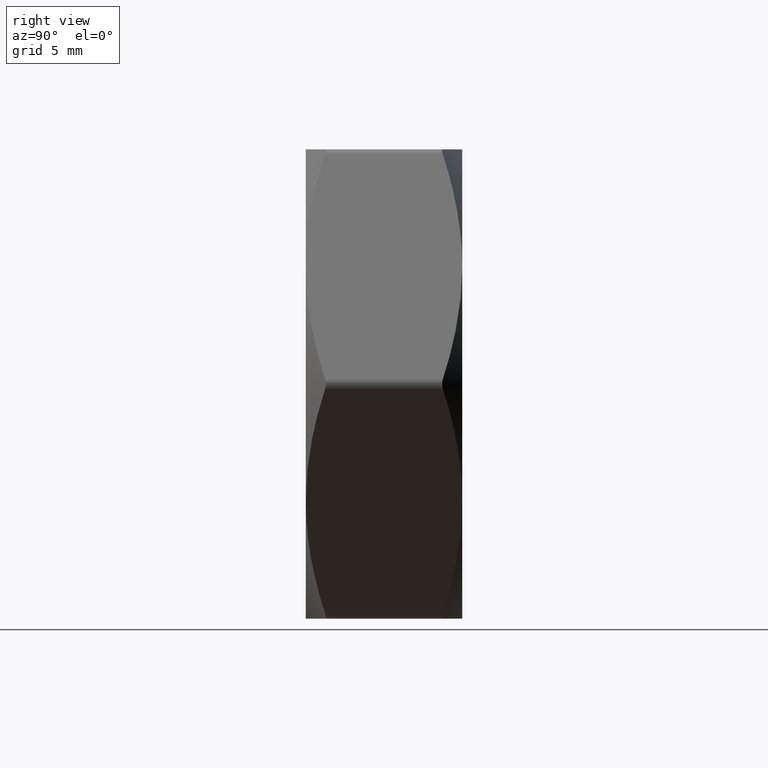
[diagram: clean part render]
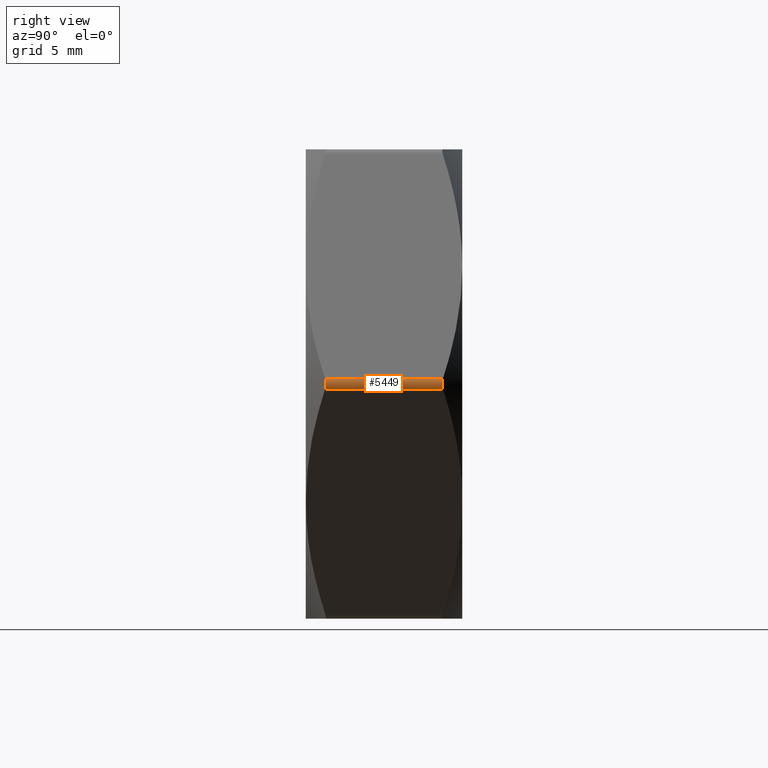
[diagram: same view with one face highlighted and labeled with its STEP entity id]
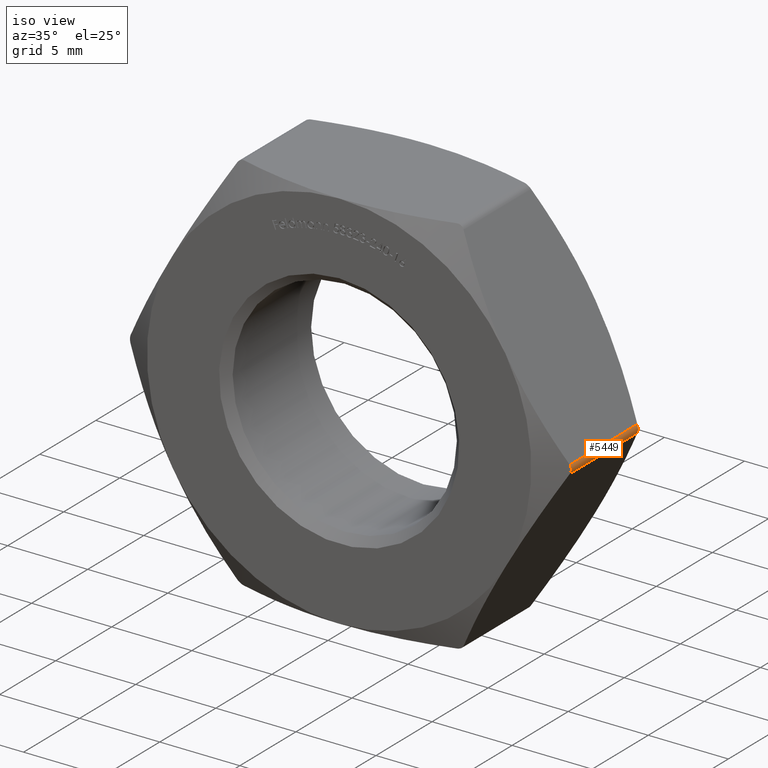
[diagram: same view with one face highlighted and labeled with its STEP entity id]
A machine part, right view. The second image highlights one B-rep face of the part: STEP entity #5449.
A second angle (iso view) of the same face is appended — the face is thin or edge-on in the first view.
In plain terms, the highlighted cylindrical surface (edge-blend (fillet) strip) has radius 0.5 mm, axis along (0, -1, 0).
Its self-contained STEP definition (entity closure, byte-faithful):
#187 = DIRECTION ( 'NONE',  ( 0.0000000000000000000, -1.000000000000000000, 0.0000000000000000000 ) ) ;
#299 = VERTEX_POINT ( 'NONE', #1596 ) ;
#398 = VERTEX_POINT ( 'NONE', #7454 ) ;
#412 = DIRECTION ( 'NONE',  ( 0.0000000000000000000, -1.000000000000000000, 0.0000000000000000000 ) ) ;
#417 = CARTESIAN_POINT ( 'NONE',  ( 13.75500057916277400, -2.986220986998569000, 0.1756401387507428000 ) ) ;
#588 = CARTESIAN_POINT ( 'NONE',  ( 13.77897635095641600, -2.972905852214859000, -0.08857185176792890800 ) ) ;
#608 = VECTOR ( 'NONE', #412, 1000.000000000000000 ) ;
#1022 = EDGE_CURVE ( 'NONE', #2672, #7926, #3034, .T. ) ;
#1596 = CARTESIAN_POINT ( 'NONE',  ( 13.71206889325392300, 3.010220883462213500, 0.2499999999994537700 ) ) ;
#2672 = VERTEX_POINT ( 'NONE', #14881 ) ;
#3034 = LINE ( 'NONE', #11986, #608 ) ;
#3309 = VECTOR ( 'NONE', #16092, 1000.000000000000000 ) ;
#3851 = B_SPLINE_CURVE_WITH_KNOTS ( 'NONE', 3,
 ( #12735, #12564, #12794, #9979, #4839, #5009 ),
 .UNSPECIFIED., .F., .F.,
 ( 4, 2, 4 ),
 ( 6.105441178433198600E-016, 0.0002638430375142733600, 0.0005276860750279361000 ),
 .UNSPECIFIED. ) ;
#4012 = EDGE_CURVE ( 'NONE', #299, #2672, #3851, .T. ) ;
#4693 = CARTESIAN_POINT ( 'NONE',  ( 13.71206889325392500, -3.010220883462213100, -0.2499999999994546000 ) ) ;
#4839 = CARTESIAN_POINT ( 'NONE',  ( 13.75500057916244900, 2.986220986998747900, -0.1756401387516019800 ) ) ;
#5009 = CARTESIAN_POINT ( 'NONE',  ( 13.71206889325360800, 3.010220883462389800, -0.2499999999999993100 ) ) ;
#5449 = ADVANCED_FACE ( 'NONE', ( #16261 ), #7740, .T. ) ;
#6060 = ORIENTED_EDGE ( 'NONE', *, *, #14220, .F. ) ;
#6297 = EDGE_LOOP ( 'NONE', ( #15434, #13377, #6060, #10608 ) ) ;
#6612 = CARTESIAN_POINT ( 'NONE',  ( 13.27905619136139000, 4.000000000000000000, -1.626303258728256700E-016 ) ) ;
#6918 = CARTESIAN_POINT ( 'NONE',  ( 13.71206889325360700, 4.000000000000000000, 0.2500000000000019400 ) ) ;
#7454 = CARTESIAN_POINT ( 'NONE',  ( 13.71206889325360800, -3.010220883462389800, 0.2499999999999991400 ) ) ;
#7637 = B_SPLINE_CURVE_WITH_KNOTS ( 'NONE', 3,
 ( #12041, #9570, #588, #8141, #417, #13509 ),
 .UNSPECIFIED., .F., .F.,
 ( 4, 2, 4 ),
 ( 6.108902673168443500E-016, 0.0002638430375142711400, 0.0005276860750279313300 ),
 .UNSPECIFIED. ) ;
#7740 = CYLINDRICAL_SURFACE ( 'NONE', #12661, 0.5000000000000000000 ) ;
#7926 = VERTEX_POINT ( 'NONE', #4693 ) ;
#8141 = CARTESIAN_POINT ( 'NONE',  ( 13.77913562340729600, -2.972817233024211500, 0.08766812727414131900 ) ) ;
#9570 = CARTESIAN_POINT ( 'NONE',  ( 13.75498456792435900, -2.986229937684953500, -0.1756678710291626800 ) ) ;
#9760 = EDGE_CURVE ( 'NONE', #398, #299, #15477, .T. ) ;
#9979 = CARTESIAN_POINT ( 'NONE',  ( 13.77913562340729600, 2.972817233024212000, -0.08766812727414510800 ) ) ;
#10608 = ORIENTED_EDGE ( 'NONE', *, *, #1022, .F. ) ;
#11986 = CARTESIAN_POINT ( 'NONE',  ( 13.71206889325360800, 4.000000000000000000, -0.2500000000000003900 ) ) ;
#12041 = CARTESIAN_POINT ( 'NONE',  ( 13.71206889325392500, -3.010220883462213100, -0.2499999999994546000 ) ) ;
#12564 = CARTESIAN_POINT ( 'NONE',  ( 13.75498456792436200, 2.986229937684953500, 0.1756678710291612900 ) ) ;
#12661 = AXIS2_PLACEMENT_3D ( 'NONE', #6612, #187, #13439 ) ;
#12735 = CARTESIAN_POINT ( 'NONE',  ( 13.71206889325392300, 3.010220883462213500, 0.2499999999994537700 ) ) ;
#12794 = CARTESIAN_POINT ( 'NONE',  ( 13.77897635095641600, 2.972905852214858600, 0.08857185176792706200 ) ) ;
#13377 = ORIENTED_EDGE ( 'NONE', *, *, #9760, .F. ) ;
#13439 = DIRECTION ( 'NONE',  ( 0.0000000000000000000, 0.0000000000000000000, -1.000000000000000000 ) ) ;
#13509 = CARTESIAN_POINT ( 'NONE',  ( 13.71206889325360800, -3.010220883462389800, 0.2499999999999991400 ) ) ;
#14220 = EDGE_CURVE ( 'NONE', #7926, #398, #7637, .T. ) ;
#14881 = CARTESIAN_POINT ( 'NONE',  ( 13.71206889325360800, 3.010220883462389800, -0.2499999999999993100 ) ) ;
#15434 = ORIENTED_EDGE ( 'NONE', *, *, #4012, .F. ) ;
#15477 = LINE ( 'NONE', #6918, #3309 ) ;
#16092 = DIRECTION ( 'NONE',  ( -0.0000000000000000000, 1.000000000000000000, -0.0000000000000000000 ) ) ;
#16261 = FACE_OUTER_BOUND ( 'NONE', #6297, .T. ) ;